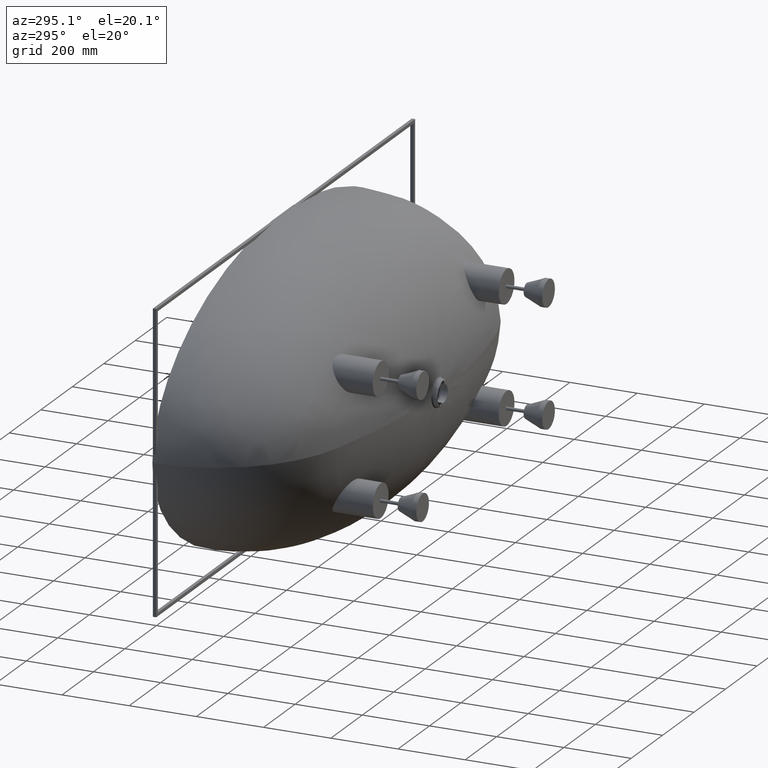
[diagram: clean part render]
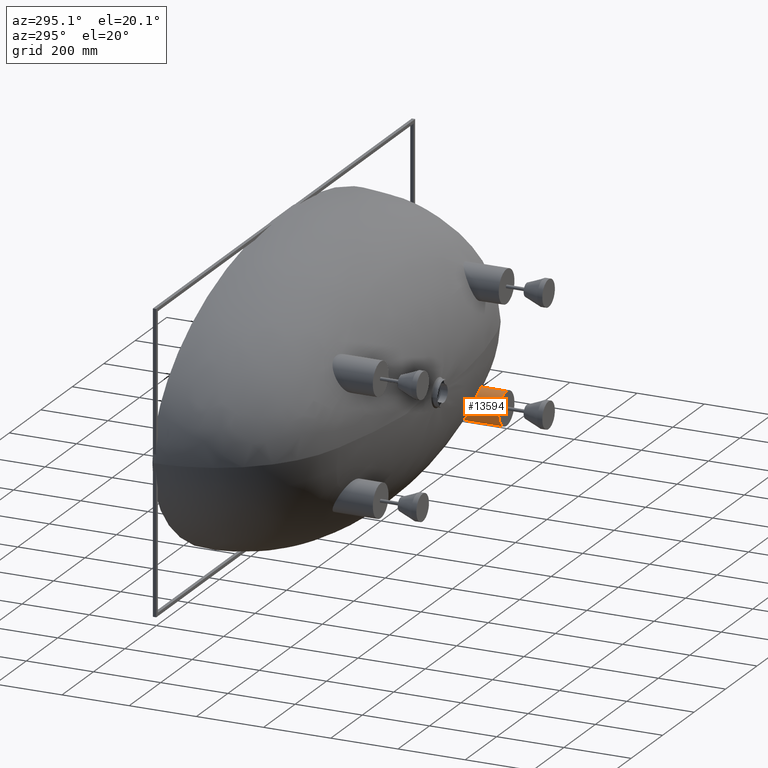
[diagram: same view with one face highlighted and labeled with its STEP entity id]
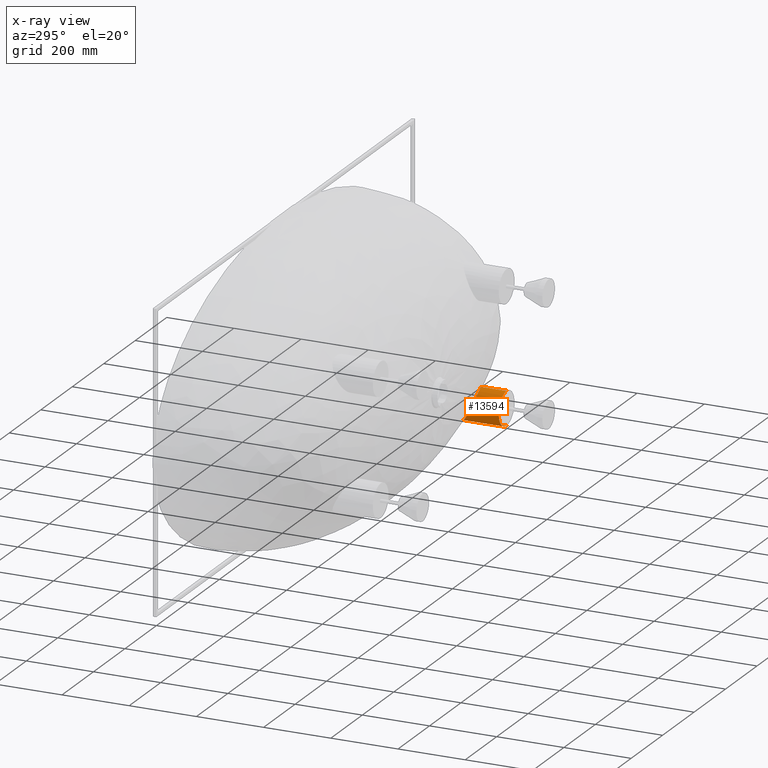
[diagram: x-ray of the same camera — body ghosted, the highlighted face saturated]
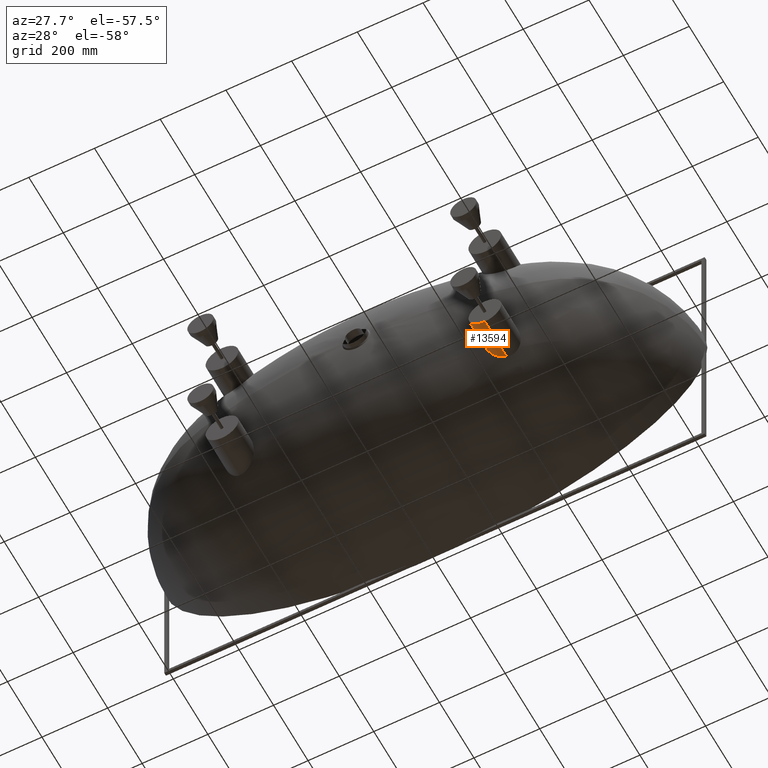
[diagram: same view with one face highlighted and labeled with its STEP entity id]
A machine part, auxiliary view. The second image highlights one B-rep face of the part: STEP entity #13594.
The next image is the same camera in x-ray: the body ghosted, the highlighted face saturated — about 0% of this face is hidden behind the body in this view.
A second angle (auxiliary view) of the same face is appended — the face is thin or edge-on in the first view.
In plain terms, the highlighted cylindrical surface (edge-blend (fillet) strip) has radius 50 mm, axis along (-0, -1, -0).
Its self-contained STEP definition (entity closure, byte-faithful):
#438 = EDGE_LOOP ( 'NONE', ( #824, #4376, #21081, #10883 ) ) ;
#824 = ORIENTED_EDGE ( 'NONE', *, *, #20314, .F. ) ;
#1118 = CARTESIAN_POINT ( 'NONE',  ( 398.2842953060981000, -405.0821409604815800, -124.9999999999999300 ) ) ;
#1207 = CARTESIAN_POINT ( 'NONE',  ( 378.0238087715642300, -407.5318459366246800, -130.0795988817681600 ) ) ;
#1288 = CARTESIAN_POINT ( 'NONE',  ( 356.1909985902763100, -403.8822811453511600, -150.8854576716810200 ) ) ;
#1298 = EDGE_CURVE ( 'NONE', #17521, #12344, #23514, .T. ) ;
#1364 = CARTESIAN_POINT ( 'NONE',  ( 349.9022766057555000, -394.1316412391908000, -175.4304530554789800 ) ) ;
#1448 = CARTESIAN_POINT ( 'NONE',  ( 361.1643903686002100, -374.8656087894397000, -206.6359250558581900 ) ) ;
#1535 = CARTESIAN_POINT ( 'NONE',  ( 384.5226907863422500, -359.2497430735171000, -222.5511591951098500 ) ) ;
#3192 = CARTESIAN_POINT ( 'NONE',  ( 375.6563770306667600, -407.5675179003490000, -131.3173845435633200 ) ) ;
#3277 = CARTESIAN_POINT ( 'NONE',  ( 355.0080419925387200, -403.1642594374706600, -153.1721264954882400 ) ) ;
#3361 = CARTESIAN_POINT ( 'NONE',  ( 350.4298071456734100, -390.8877319327618800, -181.7252644520478400 ) ) ;
#3443 = CARTESIAN_POINT ( 'NONE',  ( 365.8862861381798600, -370.7876745576252200, -211.5627843928354300 ) ) ;
#3528 = CARTESIAN_POINT ( 'NONE',  ( 388.4297987912700600, -357.4917869190274500, -223.6704348004942900 ) ) ;
#4376 = ORIENTED_EDGE ( 'NONE', *, *, #18424, .T. ) ;
#5035 = EDGE_CURVE ( 'NONE', #21366, #17521, #23637, .T. ) ;
#5139 = CARTESIAN_POINT ( 'NONE',  ( 371.8875887109563800, -407.4931081750887600, -133.6142739951964700 ) ) ;
#5220 = CARTESIAN_POINT ( 'NONE',  ( 353.6146831534005100, -402.1344570619516500, -156.2580538194109500 ) ) ;
#5308 = CARTESIAN_POINT ( 'NONE',  ( 351.2723857741343100, -388.3540902842489100, -186.3126510095311800 ) ) ;
#5391 = CARTESIAN_POINT ( 'NONE',  ( 367.6048765092953100, -369.4398892649436400, -213.0938805835630500 ) ) ;
#5474 = CARTESIAN_POINT ( 'NONE',  ( 393.2697100393310700, -355.5857747453310400, -224.5730498589998900 ) ) ;
#5832 = CYLINDRICAL_SURFACE ( 'NONE', #11400, 50.00000000000007100 ) ;
#7042 = CARTESIAN_POINT ( 'NONE',  ( 393.9486434284364700, -405.8848463486164100, -125.3598411978878700 ) ) ;
#7122 = CARTESIAN_POINT ( 'NONE',  ( 367.6905751700933800, -407.1517302153966400, -136.8003870560160900 ) ) ;
#7208 = CARTESIAN_POINT ( 'NONE',  ( 351.9769853939681600, -400.4049791012662400, -160.9802225414296400 ) ) ;
#7296 = CARTESIAN_POINT ( 'NONE',  ( 353.4987413259070800, -383.9854342097239600, -193.6265828120635900 ) ) ;
#7380 = CARTESIAN_POINT ( 'NONE',  ( 369.9856203633804100, -367.6767887056242900, -215.0184903290126200 ) ) ;
#7459 = CARTESIAN_POINT ( 'NONE',  ( 396.5968722463798000, -354.4542708166358100, -224.8912262342745700 ) ) ;
#7699 = VECTOR ( 'NONE', #15850, 1000.000000000000000 ) ;
#8973 = CARTESIAN_POINT ( 'NONE',  ( 391.3381431077736500, -406.3027632778457700, -125.7481598652232900 ) ) ;
#9051 = CARTESIAN_POINT ( 'NONE',  ( 365.0922670817074000, -406.7631200219337900, -139.1917488870961700 ) ) ;
#9132 = CARTESIAN_POINT ( 'NONE',  ( 351.0044156638583700, -398.7982169264744800, -164.9942923569958900 ) ) ;
#9208 = CARTESIAN_POINT ( 'NONE',  ( 355.4734561818314100, -381.2531173002813000, -197.7588385882618800 ) ) ;
#9291 = CARTESIAN_POINT ( 'NONE',  ( 375.0722144567041000, -364.2770563254837800, -218.4515571028839800 ) ) ;
#9380 = CARTESIAN_POINT ( 'NONE',  ( 398.2885959187120200, -353.9281591254787700, -224.9725223520547400 ) ) ;
#10883 = ORIENTED_EDGE ( 'NONE', *, *, #1298, .T. ) ;
#10944 = CARTESIAN_POINT ( 'NONE',  ( 386.1978466871848900, -407.0102764024060200, -126.8155150800958100 ) ) ;
#11027 = CARTESIAN_POINT ( 'NONE',  ( 363.2476942564449000, -406.4015075457433000, -141.0878789552606100 ) ) ;
#11111 = CARTESIAN_POINT ( 'NONE',  ( 350.5707392226127000, -397.7740537561726900, -167.4223818513449400 ) ) ;
#11201 = CARTESIAN_POINT ( 'NONE',  ( 356.5561345001690900, -379.8827153840836700, -199.7629052776951000 ) ) ;
#11213 = B_SPLINE_CURVE_WITH_KNOTS ( 'NONE', 3,
 ( #14806, #1118, #18675, #7042, #20592, #8973, #22534, #10944, #24505, #12907, #1207, #14898, #3192, #16882, #5139, #18758, #7122, #20675, #9051, #22617, #11027, #24595, #12993, #1288, #14983, #3277, #16959, #5220, #18842, #7208, #20754, #9132, #22698, #11111, #24676, #13081, #1364, #15074, #3361, #17040, #5308, #18927, #7296, #20846, #9208, #22780, #11201, #24760, #13169, #1448, #15163, #3443, #17125, #5391, #19015, #7380, #20934, #9291, #22862, #11291, #24847, #13255, #1535, #15259, #3528, #17205, #5474, #19101, #7459, #21013, #9380, #22947, #11370, #24933 ),
 .UNSPECIFIED., .F., .F.,
 ( 4, 2, 2, 2, 2, 2, 2, 2, 2, 2, 2, 2, 2, 2, 2, 2, 2, 2, 2, 2, 2, 2, 2, 2, 2, 2, 2, 2, 2, 2, 2, 2, 2, 2, 2, 2, 4 ),
 ( 0.1683160255084992200, 0.1735964874833365300, 0.1762367184707552000, 0.1788769494581738700, 0.1894378734078489800, 0.1920781043952677900, 0.1947183353826866000, 0.1999987973575241000, 0.2052792593323616000, 0.2079194903197803800, 0.2105597213071991900, 0.2211206452568741100, 0.2237608762442928900, 0.2264011072317116400, 0.2316815692065493600, 0.2369620311813870900, 0.2396022621688059200, 0.2422424931562247900, 0.2528034171059001500, 0.2580838790807378200, 0.2633643410555754900, 0.2739252650052507200, 0.2765654959926695500, 0.2792057269800883300, 0.2844861889549258300, 0.2950471129046008400, 0.2976873438920195100, 0.3003275748794382300, 0.3056080368542755100, 0.3161689608039500200, 0.3188091917913686800, 0.3214494227787873500, 0.3267298847536246300, 0.3320103467284619700, 0.3346505777158805300, 0.3359706932095897200, 0.3372908087032989200 ),
 .UNSPECIFIED. ) ;
#11291 = CARTESIAN_POINT ( 'NONE',  ( 381.4835088608131700, -360.7393001683786900, -221.4518332911079000 ) ) ;
#11370 = CARTESIAN_POINT ( 'NONE',  ( 399.5708485803568200, -353.5506096476222000, -224.9999999999999700 ) ) ;
#11400 = AXIS2_PLACEMENT_3D ( 'NONE', #16055, #14081, #17978 ) ;
#11523 = CARTESIAN_POINT ( 'NONE',  ( 400.0000000000000000, -353.4300241764697100, -224.9999999999999700 ) ) ;
#12344 = VERTEX_POINT ( 'NONE', #16259 ) ;
#12395 = DIRECTION ( 'NONE',  ( -0.0000000000000000000, -1.000000000000000000, -0.0000000000000000000 ) ) ;
#12907 = CARTESIAN_POINT ( 'NONE',  ( 378.8274650942447000, -407.5054136767427100, -129.6953989665963700 ) ) ;
#12993 = CARTESIAN_POINT ( 'NONE',  ( 358.3292514910709800, -404.9932720979523400, -147.1542675038176600 ) ) ;
#13081 = CARTESIAN_POINT ( 'NONE',  ( 349.9708190334911300, -395.6480516884467400, -172.2482527257067500 ) ) ;
#13169 = CARTESIAN_POINT ( 'NONE',  ( 358.5314918179036000, -377.6002058983010000, -202.9753804540166900 ) ) ;
#13255 = CARTESIAN_POINT ( 'NONE',  ( 383.7504312665768700, -359.6172399204724600, -222.2927529798956800 ) ) ;
#13594 = ADVANCED_FACE ( 'NONE', ( #17662 ), #5832, .T. ) ;
#14081 = DIRECTION ( 'NONE',  ( -0.0000000000000000000, -1.000000000000000000, -0.0000000000000000000 ) ) ;
#14697 = CARTESIAN_POINT ( 'NONE',  ( 400.0000000000000600, 500000.0000000000600, -225.0000000000000600 ) ) ;
#14806 = CARTESIAN_POINT ( 'NONE',  ( 400.0000000000002800, -404.7099913692891300, -124.9999999999999700 ) ) ;
#14898 = CARTESIAN_POINT ( 'NONE',  ( 376.4357865723743500, -407.5629254515190500, -130.8919138584666400 ) ) ;
#14983 = CARTESIAN_POINT ( 'NONE',  ( 355.7813632511745300, -403.6486200395246400, -151.6452464977779500 ) ) ;
#15074 = CARTESIAN_POINT ( 'NONE',  ( 350.2412940692498200, -391.7183738382880700, -180.1539284896984700 ) ) ;
#15163 = CARTESIAN_POINT ( 'NONE',  ( 363.1357267386756600, -373.0469041531030700, -208.9167830574164700 ) ) ;
#15259 = CARTESIAN_POINT ( 'NONE',  ( 386.8518970702714300, -358.1752119584984400, -223.2676574377158800 ) ) ;
#15362 = DIRECTION ( 'NONE',  ( 0.0000000000000000000, 0.0000000000000000000, 1.000000000000000000 ) ) ;
#15386 = DIRECTION ( 'NONE',  ( 0.0000000000000000000, 1.000000000000000000, 0.0000000000000000000 ) ) ;
#15527 = CARTESIAN_POINT ( 'NONE',  ( 400.0000000000000600, -480.0000000000000000, -225.0000000000000600 ) ) ;
#15850 = DIRECTION ( 'NONE',  ( -0.0000000000000000000, -1.000000000000000000, -0.0000000000000000000 ) ) ;
#16055 = CARTESIAN_POINT ( 'NONE',  ( 400.0000000000000600, 500000.0000000000600, -175.0000000000000000 ) ) ;
#16259 = CARTESIAN_POINT ( 'NONE',  ( 400.0000000000000600, -480.0000000000000000, -124.9999999999999100 ) ) ;
#16321 = VECTOR ( 'NONE', #12395, 1000.000000000000000 ) ;
#16882 = CARTESIAN_POINT ( 'NONE',  ( 373.3609406986435000, -407.5488039469078700, -132.6503599886533800 ) ) ;
#16959 = CARTESIAN_POINT ( 'NONE',  ( 354.6436131807404300, -402.9132927112388000, -153.9402584037560200 ) ) ;
#17040 = CARTESIAN_POINT ( 'NONE',  ( 350.9454188742470300, -389.2067854022813000, -184.8021054953533700 ) ) ;
#17125 = CARTESIAN_POINT ( 'NONE',  ( 366.4521815218745900, -370.3355427331310900, -212.0827674163014600 ) ) ;
#17205 = CARTESIAN_POINT ( 'NONE',  ( 391.6387125573322100, -356.1970802824550900, -224.3231147838490400 ) ) ;
#17280 = CARTESIAN_POINT ( 'NONE',  ( 400.0000000000000600, -480.0000000000000000, -175.0000000000000000 ) ) ;
#17521 = VERTEX_POINT ( 'NONE', #15527 ) ;
#17662 = FACE_OUTER_BOUND ( 'NONE', #438, .T. ) ;
#17833 = VERTEX_POINT ( 'NONE', #22182 ) ;
#17978 = DIRECTION ( 'NONE',  ( 0.0000000000000000000, 0.0000000000000000000, -1.000000000000000000 ) ) ;
#18424 = EDGE_CURVE ( 'NONE', #17833, #21366, #11213, .T. ) ;
#18675 = CARTESIAN_POINT ( 'NONE',  ( 396.5572179387260700, -405.4229568175472900, -125.0880336923203200 ) ) ;
#18758 = CARTESIAN_POINT ( 'NONE',  ( 369.0524043022277300, -407.2945697508735600, -135.6892850999088900 ) ) ;
#18842 = CARTESIAN_POINT ( 'NONE',  ( 353.0143769356930100, -401.5807063799715000, -157.8210792801804100 ) ) ;
#18927 = CARTESIAN_POINT ( 'NONE',  ( 352.4510118238506500, -385.7609091284968500, -190.7645034002766500 ) ) ;
#19015 = CARTESIAN_POINT ( 'NONE',  ( 368.1919900026212000, -368.9960437972156300, -213.5854394597592400 ) ) ;
#19101 = CARTESIAN_POINT ( 'NONE',  ( 395.7596403370559400, -354.7295397744799200, -224.8268538917344900 ) ) ;
#20314 = EDGE_CURVE ( 'NONE', #17833, #12344, #21432, .T. ) ;
#20592 = CARTESIAN_POINT ( 'NONE',  ( 393.0733935176510300, -406.0309549545812600, -125.4743132897513900 ) ) ;
#20675 = CARTESIAN_POINT ( 'NONE',  ( 365.7325223050105500, -406.8690903585711600, -138.5786146213410200 ) ) ;
#20754 = CARTESIAN_POINT ( 'NONE',  ( 351.5399263443382000, -399.7829966189065100, -162.5763475259184900 ) ) ;
#20846 = CARTESIAN_POINT ( 'NONE',  ( 355.1306340683736400, -381.7109445562928200, -197.0753774880384400 ) ) ;
#20934 = CARTESIAN_POINT ( 'NONE',  ( 371.2243474885344200, -366.8136253903467100, -215.9184542624574000 ) ) ;
#21013 = CARTESIAN_POINT ( 'NONE',  ( 397.8642258011097400, -354.0576502914148000, -224.9561547958618900 ) ) ;
#21081 = ORIENTED_EDGE ( 'NONE', *, *, #5035, .T. ) ;
#21366 = VERTEX_POINT ( 'NONE', #11523 ) ;
#21432 = LINE ( 'NONE', #23996, #16321 ) ;
#22182 = CARTESIAN_POINT ( 'NONE',  ( 400.0000000000002800, -404.7099913692891300, -124.9999999999999700 ) ) ;
#22534 = CARTESIAN_POINT ( 'NONE',  ( 390.4765021961066500, -406.4288109789581500, -125.9075541348679800 ) ) ;
#22617 = CARTESIAN_POINT ( 'NONE',  ( 363.8489173555240100, -406.5291069690643400, -140.4474329623414800 ) ) ;
#22698 = CARTESIAN_POINT ( 'NONE',  ( 350.8457368340128800, -398.4605612516693300, -165.8059513589134000 ) ) ;
#22780 = CARTESIAN_POINT ( 'NONE',  ( 356.1858862141891100, -380.3394647133928300, -199.1018935239921500 ) ) ;
#22862 = CARTESIAN_POINT ( 'NONE',  ( 377.8113628874970700, -362.6557631703146300, -219.9198903214281400 ) ) ;
#22947 = CARTESIAN_POINT ( 'NONE',  ( 399.1412951777671200, -353.6748108448540500, -224.9944448932511400 ) ) ;
#23514 = CIRCLE ( 'NONE', #24729, 50.00000000000007100 ) ;
#23637 = LINE ( 'NONE', #14697, #7699 ) ;
#23996 = CARTESIAN_POINT ( 'NONE',  ( 400.0000000000000600, 500000.0000000000600, -124.9999999999999100 ) ) ;
#24505 = CARTESIAN_POINT ( 'NONE',  ( 382.8685206752152800, -407.3214618581642400, -127.8932896261496500 ) ) ;
#24595 = CARTESIAN_POINT ( 'NONE',  ( 360.3407085102063000, -405.7112173279611500, -144.3509625263555700 ) ) ;
#24676 = CARTESIAN_POINT ( 'NONE',  ( 350.4540429225326100, -397.4247022808536400, -168.2284544891619800 ) ) ;
#24729 = AXIS2_PLACEMENT_3D ( 'NONE', #17280, #15386, #15362 ) ;
#24760 = CARTESIAN_POINT ( 'NONE',  ( 357.7082824732314100, -378.5128829458817600, -201.7150582644705700 ) ) ;
#24847 = CARTESIAN_POINT ( 'NONE',  ( 382.2306925377569100, -360.3619888345223800, -221.7429639705479200 ) ) ;
#24933 = CARTESIAN_POINT ( 'NONE',  ( 400.0000000000000000, -353.4300241764697100, -224.9999999999999700 ) ) ;